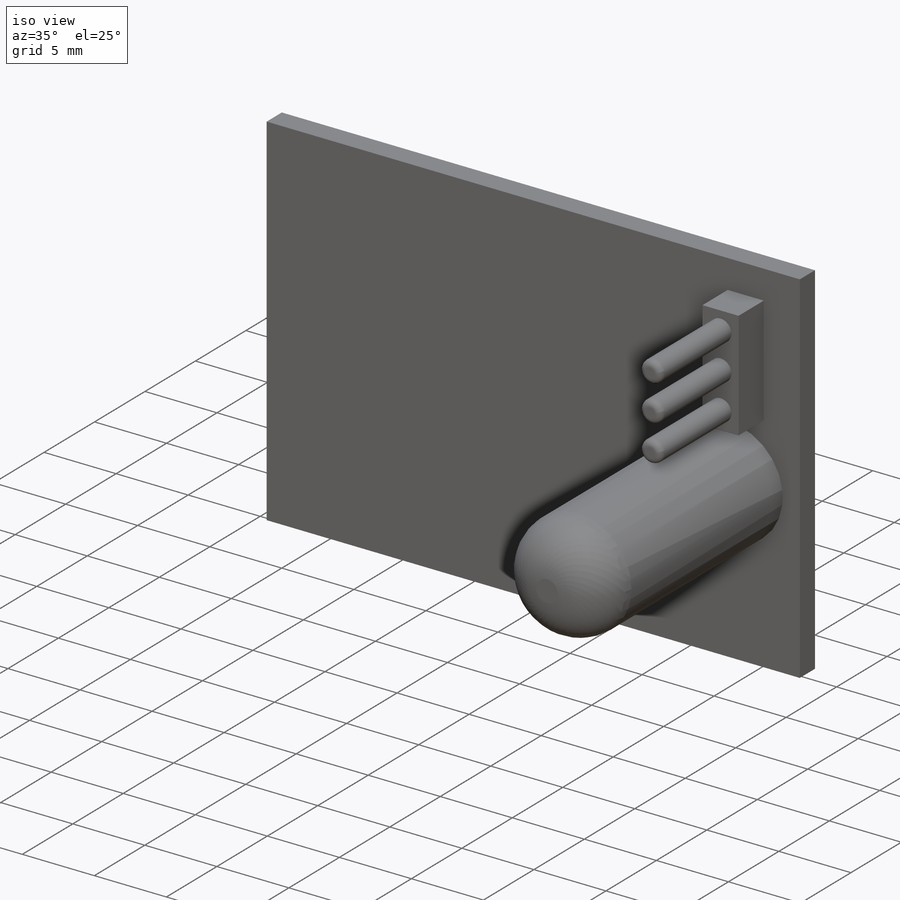
[diagram: iso view]
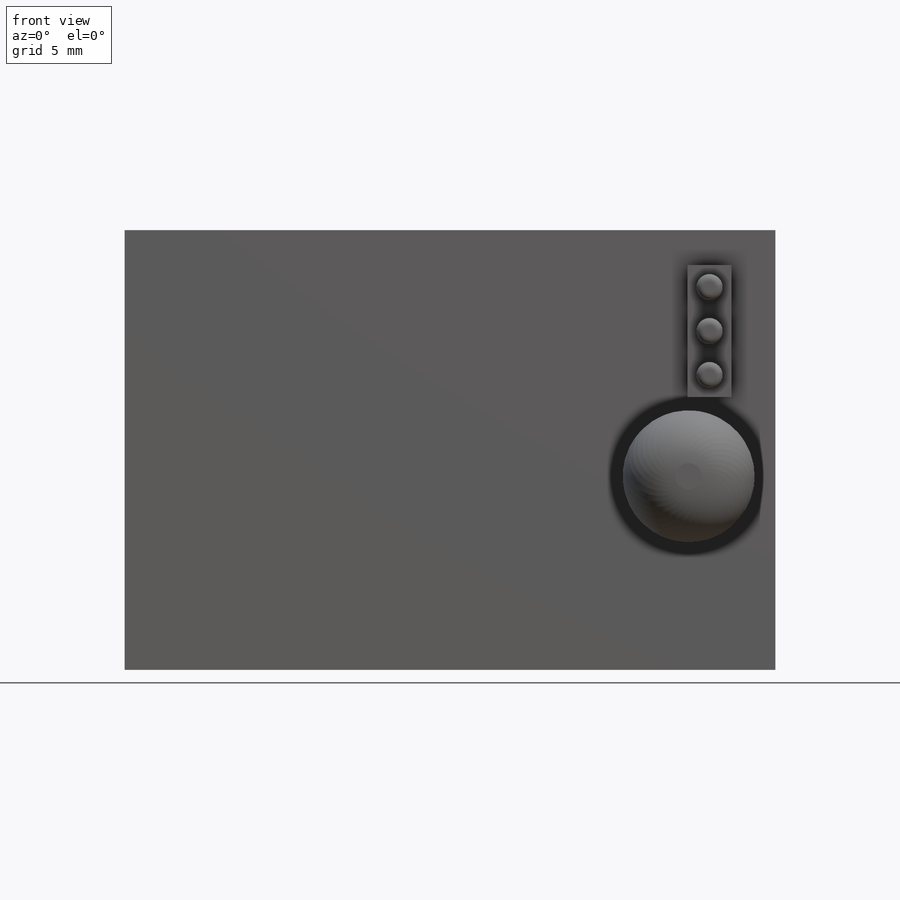
[diagram: front view]
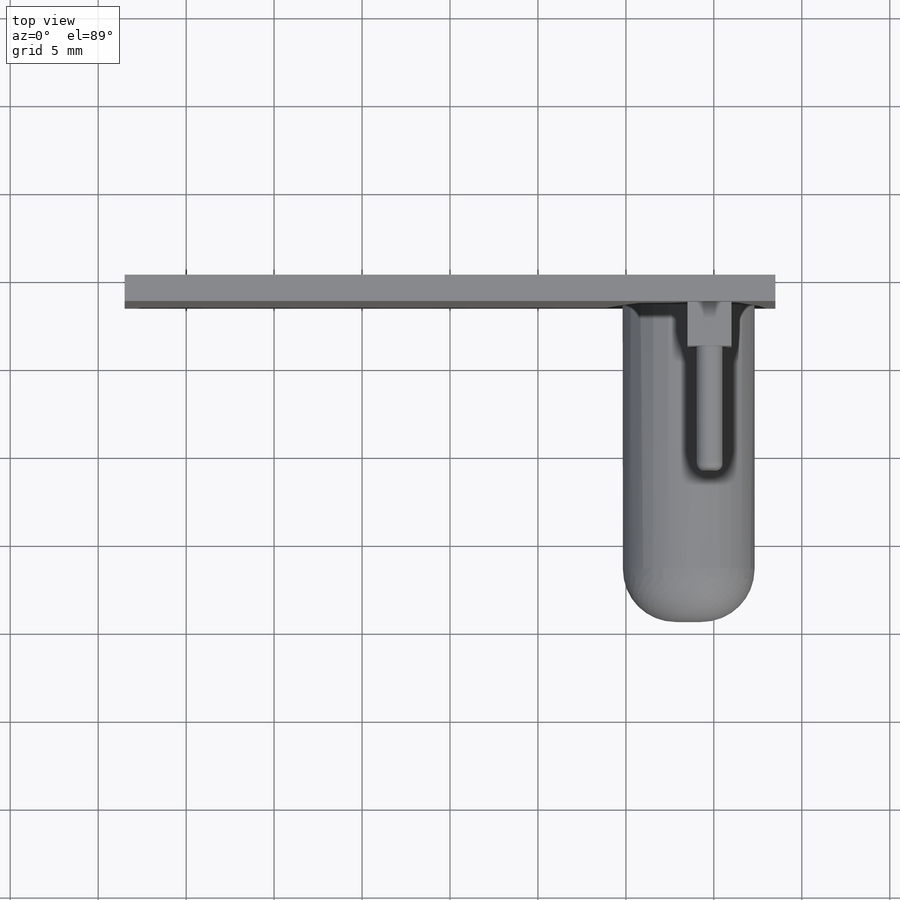
[diagram: top view]
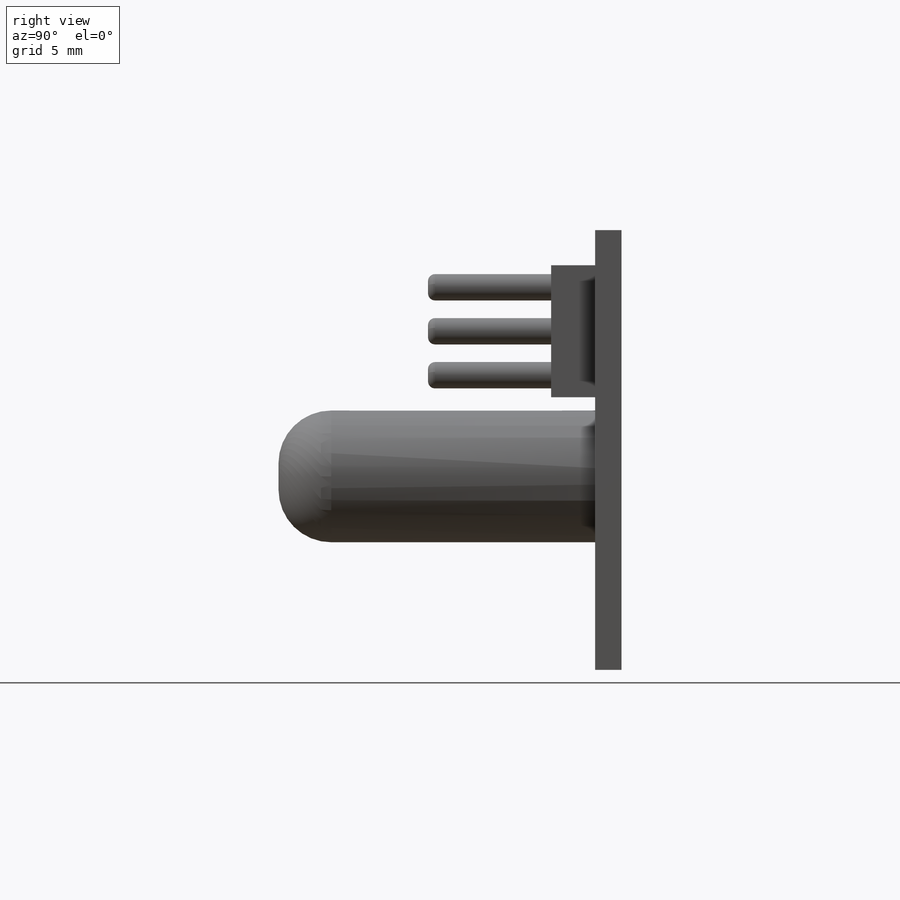
[diagram: right view]
SOLIDWORKS PART (.sldprt)
format: sldprt  version: not decoded by parser v0  size: 238,080 bytes
history: native  units: mm
features: sketch x4, extrude x4, plane x3, pattern_linear x2, material x1, fillet x1 (+10 scaffold rows collapsed)
feature tree (25):
  scaffold x10  (default folders/planes/origin — collapsed)
  material  "Material <nicht angegeben>"
  plane  "Ebene vorne"
  plane  "Ebene oben"
  plane  "Ebene rechts"
  sketch  "Skizze1"  dims[D1=37.0mm D2=25.0mm]
  extrude  "Aufsatz-Linear austragen1"  Depth=1.5mm
  sketch  "Skizze3"  dims[D1=7.5mm D2=11.0mm]
  extrude  "Aufsatz-Linear austragen2"  Depth=18mm
  fillet  "Verrundung1"  Radius=3mm
  sketch  "Skizze5"  dims[D1=2.0mm D2=7.5mm D3=2.5mm D4=2.5mm]
  extrude  "Aufsatz-Linear austragen3"  Depth=2.5mm
  sketch  "Skizze6"  dims[D1=1.5mm D2=1.25mm D3=1.25mm]
  extrude  "Aufsatz-Linear austragen4"  Depth=7mm
  pattern_linear  "Lineares Muster1"  Count1=3 Count2=1 Spacing1=2.5mm Spacing2=10mm
  pattern_linear  "Verrundung2"  Spacing1=0.4mm  [1 undecoded]
decode coverage: 11 of 11 modeling features carry decoded parameters
note: 1 parameter value undecoded
note: suppression state not decoded; provenance and decode notes live in map.json
